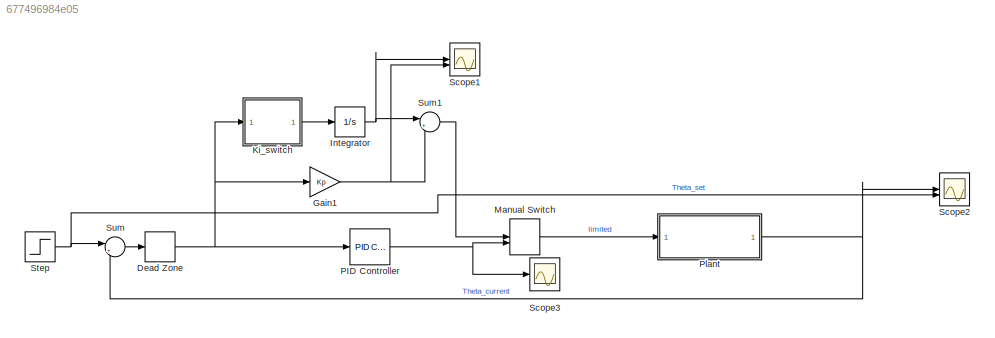
MODEL slx_677496984e05
KIND model
CONFIG AbsTol = auto
CONFIG EnableMultiTasking = off
CONFIG FixedStep = 10
CONFIG MaxStep = auto
CONFIG MinStep = auto
CONFIG RelTol = 1e-3
CONFIG SampleTimeConstraint = Unconstrained
CONFIG SolverName = FixedStepAuto
CONFIG StartTime = 0.0
CONFIG StopTime = 12000
BLOCK [DeadZone] Dead Zone
  LowerValue = -1
  UpperValue = 1
BLOCK [Gain] Gain1
  Gain = Kp
BLOCK [Integrator] Integrator
  InitialCondition = Theta_0/K
  LowerSaturationLimit = 0
  UpperSaturationLimit = 1
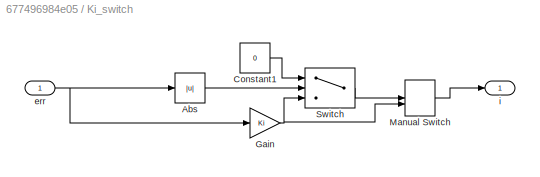
BLOCK [SubSystem] Ki_switch
BLOCK [Abs] Ki_switch/Abs
  SaturateOnIntegerOverflow = off
BLOCK [Constant] Ki_switch/Constant1
  Value = 0
BLOCK [Gain] Ki_switch/Gain
  Gain = Ki
BLOCK [ManualSwitch] Ki_switch/Manual Switch
BLOCK [Switch] Ki_switch/Switch
  Criteria = u2 > Threshold
  InputSameDT = off
  SaturateOnIntegerOverflow = off
  Threshold = 2
BLOCK [Inport] Ki_switch/err
BLOCK [Outport] Ki_switch/i
BLOCK [ManualSwitch] Manual Switch
BLOCK [Reference] PID Controller  REF=slpidlib/PID Controller
  LibrarySourceBlock = simulink/Continuous/PID Controller
  SourceBlock = slpidlib/PID Controller
  SourceType = PID 1dof
BLOCK [ModelReference] Plant
  ModelNameDialog = heating_plant_reference
  ModelReferenceVersion = 1.14
BLOCK [Scope] Scope1
  ActiveDisplayYMaximum = 1
  ActiveDisplayYMinimum = -1
  ContainerLayout = {"WindowBounds":[942,1395,445,448],"gridDimensions":{"w":1,"h":1},"tileCount":1,"tileCoverage":1,"columnWeights":1,"rowWeights":1,"tileOccupancy":{"children":[{"id":"/Scope1"},{"id":"/Scope2"}]}}
  DataLoggingVariableName = ScopeData1
  Floating = off
  GraphicalSettings = {"Style":{"BackgroundColor":[0.12941176470588237,0.12941176470588237,0.12941176470588237],"AxesColor":[0.07058823529411765,0.07058823529411765,0.07058823529411765],"LabelsColor":[0.8509803921568627,0.8509803921568627,0.8509803921568627],"PreserveColors":false,"Visible":[true,true],"LineStyle":["-","-"],"LineWidth":[1.5,1.5],"BarWidth":[0.9,0.9],"LineColor":["auto","auto"],"LineFaceAlpha":[1,1],"Li...<+2111ch>
  MultipleDisplayCache = [{"MaxYLimMag":1,"MaxYLimReal":1,"MinYLimMag":0,"MinYLimReal":-1,"PlotAsMagnitudePhase":false,"ShowGrid":true,"ShowLegend":false,"Title":"%<SignalLabel>","YLabel":""}]
  NumInputPorts = 2
  ScopeFrameLocation = window
  WasSavedAsWebScope = on
  WindowPosition = [942.000000,92.000000,582.000000,768.000000,]
BLOCK [Scope] Scope2
  ActiveDisplayYMaximum = 24.125
  ActiveDisplayYMinimum = 2.8750000000000004
  ContainerLayout = {"WindowBounds":[978,1363,545,766]}
  DataLoggingVariableName = ScopeData2
  Floating = off
  GraphicalSettings = {"Style":{"BackgroundColor":[0.12941176470588237,0.12941176470588237,0.12941176470588237],"AxesColor":[0.07058823529411765,0.07058823529411765,0.07058823529411765],"LabelsColor":[0.8509803921568627,0.8509803921568627,0.8509803921568627],"PreserveColors":false,"Visible":[true,true],"LineStyle":["-","-"],"LineWidth":[1.5,1.5],"BarWidth":[0.9,0.9],"LineColor":["auto","auto"],"LineFaceAlpha":[1,1],"Li...<+2402ch>
  MultipleDisplayCache = [{"MaxYLimMag":24.125,"MaxYLimReal":24.125,"MinYLimMag":2.8750000000000004,"MinYLimReal":2.8750000000000004,"PlotAsMagnitudePhase":false,"ShowGrid":true,"ShowLegend":false,"Title":"%<SignalLabel>","YLabel":""}]
  NumInputPorts = 2
  ScopeFrameLocation = window
  WasSavedAsWebScope = on
  WindowPosition = [716.000000,92.000000,808.000000,768.000000,]
BLOCK [Scope] Scope3
  ActiveDisplayYMaximum = 1.125
  ActiveDisplayYMinimum = -0.12499999999999997
  ContainerLayout = {"WindowBounds":[942,1395,445,448],"gridDimensions":{"w":1,"h":1},"tileCount":1,"tileCoverage":1,"columnWeights":1,"rowWeights":1,"tileOccupancy":{"children":[{"id":"/Scope1"},{"id":"/Scope2"}]}}
  Floating = off
  GraphicalSettings = {"Style":{"BackgroundColor":[0.12941176470588237,0.12941176470588237,0.12941176470588237],"AxesColor":[0.07058823529411765,0.07058823529411765,0.07058823529411765],"LabelsColor":[0.8509803921568627,0.8509803921568627,0.8509803921568627],"PreserveColors":false,"Visible":[true,true],"LineStyle":["-","-"],"LineWidth":[1.5,1.5],"BarWidth":[0.9,0.9],"LineColor":["auto","auto"],"LineFaceAlpha":[1,1],"Li...<+2416ch>
  MultipleDisplayCache = [{"MaxYLimMag":1.125,"MaxYLimReal":1.125,"MinYLimMag":0,"MinYLimReal":-0.12499999999999997,"PlotAsMagnitudePhase":false,"ShowGrid":true,"ShowLegend":false,"Title":"%<SignalLabel>","YLabel":""}]
  NumInputPorts = 2
  ScopeFrameLocation = window
  WasSavedAsWebScope = on
  WindowPosition = [942.000000,92.000000,582.000000,768.000000,]
BLOCK [Step] Step
  After = Theta_set
  Before = Theta_0
  SampleTime = 0
  Time = 600
BLOCK [Sum] Sum
  Inputs = |+-
BLOCK [Sum] Sum1
  Inputs = |++
NET Dead Zone:1 -> Gain1:1, Ki_switch:1, PID Controller:1
NET Gain1:1 -> Scope1:2, Sum1:2
NET Integrator:1 -> Scope1:1, Sum1:1
LINE Ki_switch/Abs:1 -> Ki_switch/Switch:2
LINE Ki_switch/Constant1:1 -> Ki_switch/Switch:1
NET Ki_switch/Gain:1 -> Ki_switch/Manual Switch:2, Ki_switch/Switch:3
LINE Ki_switch/Manual Switch:1 -> Ki_switch/i:1
LINE Ki_switch/Switch:1 -> Ki_switch/Manual Switch:1
NET Ki_switch/err:1 -> Ki_switch/Abs:1, Ki_switch/Gain:1
LINE Ki_switch:1 -> Integrator:1
LINE Manual Switch:1 -> Plant:1
NET PID Controller:1 -> Manual Switch:2, Scope3:1
NET Plant:1 -> Scope2:1, Sum:2
NET Step:1 -> Scope2:2, Sum:1
LINE Sum1:1 -> Manual Switch:1
LINE Sum:1 -> Dead Zone:1
note: NET lines group one-source signal fan-out (src -> all destinations, sorted); 1:1 wires keep LINE
